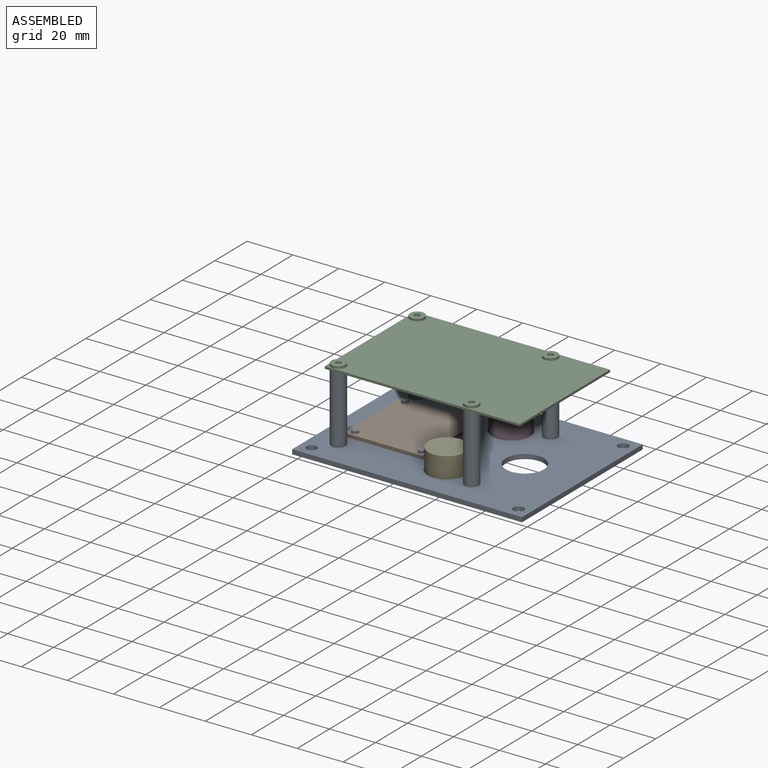
[diagram: assembled view]
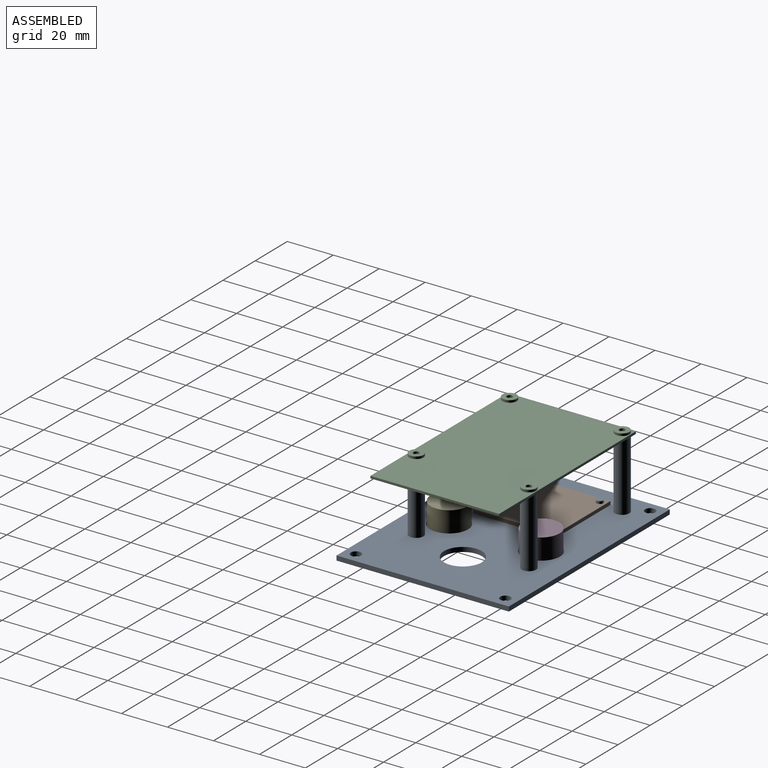
[diagram: assembled view, second angle]
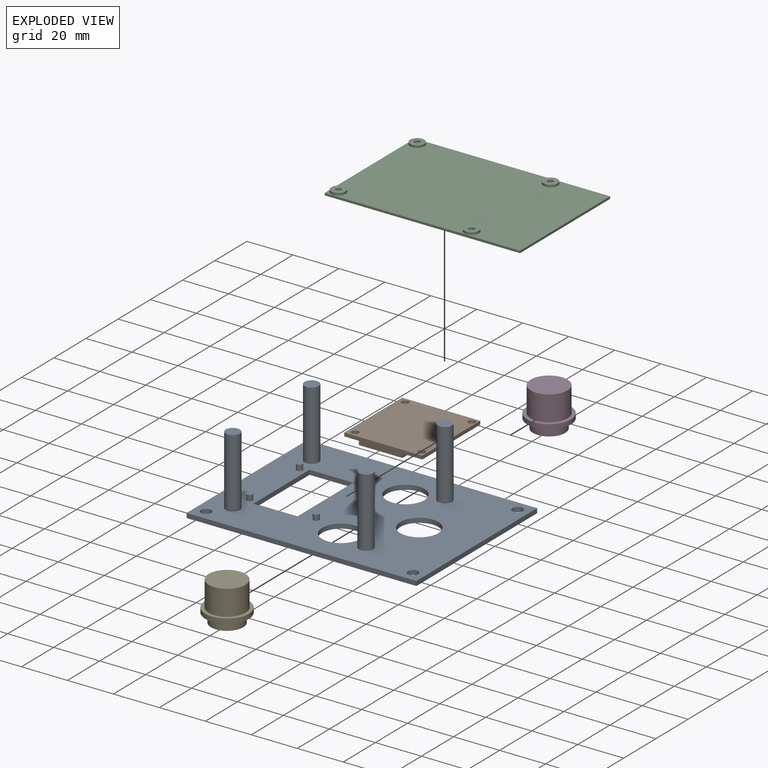
[diagram: exploded view]
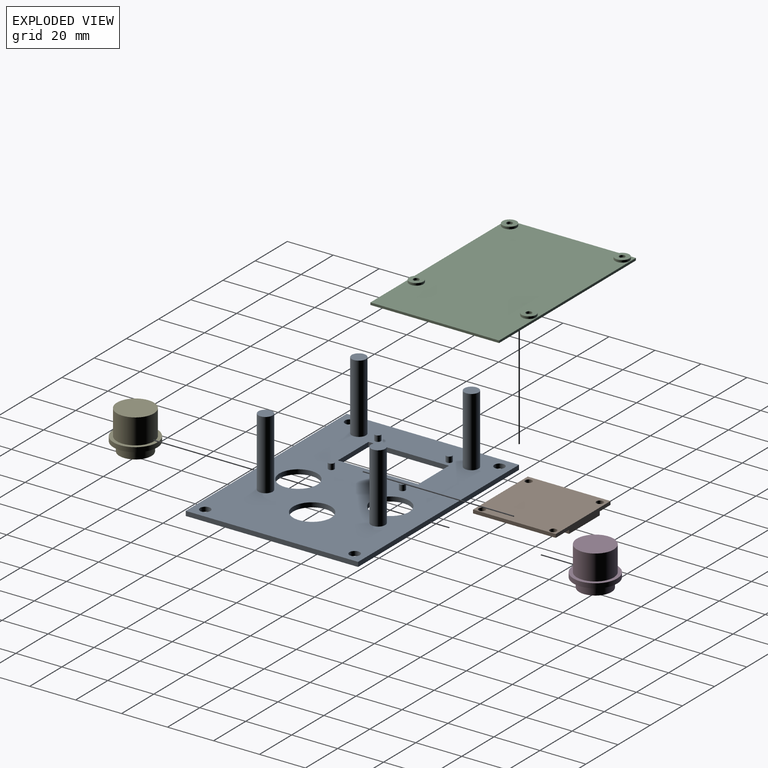
[diagram: exploded view, second angle]
FCSTD DOCUMENT  (FreeCAD 0.19R20943 (Git))
Label: Board
License: All rights reserved
LicenseURL: http://en.wikipedia.org/wiki/All_rights_reserved
objects: Sketcher::SketchObject×10, PartDesign::Pad×10, PartDesign::Body×4, PartDesign::ShapeBinder×2, App::Link×2
note: 36 computed .brp shape members not serialized (recipe doc carries the construction recipe); baked Part::Feature solids carry a one-line shape summary decoded from their .brp

FEATURE [Sketcher::SketchObject] Sketch002  label="LCD-Board"
  MapMode = 5
  Support = -> [XY_Plane001]
  sketch-geometry (8):
    g0: LineSegment StartX=-18 StartY=17 StartZ=0 EndX=18 EndY=17 EndZ=0
    g1: LineSegment StartX=18 StartY=17 StartZ=0 EndX=18 EndY=-17 EndZ=0
    g2: LineSegment StartX=18 StartY=-17 StartZ=0 EndX=-18 EndY=-17 EndZ=0
    g3: LineSegment StartX=-18 StartY=-17 StartZ=0 EndX=-18 EndY=17 EndZ=0
    g4: Circle CenterX=-15.5 CenterY=14 CenterZ=0 NormalX=0 NormalY=0 NormalZ=1 AngleXU=0 Radius=1.5
    g5: Circle CenterX=15.5 CenterY=14 CenterZ=0 NormalX=0 NormalY=0 NormalZ=1 AngleXU=0 Radius=1.5
    g6: Circle CenterX=-15.5 CenterY=-15 CenterZ=0 NormalX=0 NormalY=0 NormalZ=1 AngleXU=0 Radius=1.5
    g7: Circle CenterX=15.5 CenterY=-15 CenterZ=0 NormalX=0 NormalY=0 NormalZ=1 AngleXU=0 Radius=1.5
  constraints (21):
    c: Coincident(g0,g1)
    c: Coincident(g1,g2)
    c: Coincident(g2,g3)
    c: Coincident(g3,g0)
    c: Horizontal(g2)
    c: Vertical(g1)
    c: Symmetric(g0,g0,g-2)
    c: Symmetric(g0,g2,g-1)
    c: DistanceX(g0,g0) = 36
    c: DistanceY(g3,g3) = 34
    c: DistanceX(g0,g4) = 2.5
    c: DistanceY(g4,g0) = 3
    c: Radius(g4) = 1.5
    c: Radius(g5) = 1.5
    c: Symmetric(g4,g5,g-2)
    c: Radius(g6) = 1.5
    c: DistanceY(g6,g4) = 29
    c: Vertical(g6,g4)
    c: Radius(g7) = 1.5
    c: Vertical(g7,g5)
    c: Horizontal(g6,g7)
FEATURE [PartDesign::Pad] Pad  label="LCD-Board-body"
  Length = 1.5
  Length2 = 100
  Profile = -> Sketch002
  Type = 0
FEATURE [Sketcher::SketchObject] Sketch003  label="PI-Board"
  MapMode = 5
  sketch-geometry (4):
    g0: LineSegment StartX=-42.5 StartY=28 StartZ=0 EndX=42.5 EndY=28 EndZ=0
    g1: LineSegment StartX=42.5 StartY=28 StartZ=0 EndX=42.5 EndY=-28 EndZ=0
    g2: LineSegment StartX=42.5 StartY=-28 StartZ=0 EndX=-42.5 EndY=-28 EndZ=0
    g3: LineSegment StartX=-42.5 StartY=-28 StartZ=0 EndX=-42.5 EndY=28 EndZ=0
  constraints (11):
    c: Coincident(g0,g1)
    c: Coincident(g1,g2)
    c: Coincident(g2,g3)
    c: Coincident(g3,g0)
    c: Horizontal(g0)
    c: Horizontal(g2)
    c: Vertical(g1)
    c: Vertical(g3)
    c: Symmetric(g2,g0,g-1)
    c: DistanceX(g0,g0) = 85
    c: DistanceY(g3,g3) = 56
FEATURE [Sketcher::SketchObject] Sketch004  label="PI-Holes"
  MapMode = 5
  sketch-geometry (8):
    g0: Circle CenterX=-39 CenterY=24.5 CenterZ=0 NormalX=0 NormalY=0 NormalZ=1 AngleXU=0 Radius=1.25
    g1: Circle CenterX=19 CenterY=24.5 CenterZ=0 NormalX=0 NormalY=0 NormalZ=1 AngleXU=0 Radius=1.25
    g2: Circle CenterX=-39 CenterY=-24.5 CenterZ=0 NormalX=0 NormalY=0 NormalZ=1 AngleXU=0 Radius=1.25
    g3: Circle CenterX=19 CenterY=-24.5 CenterZ=0 NormalX=0 NormalY=0 NormalZ=1 AngleXU=0 Radius=1.25
    g4: Circle CenterX=-39 CenterY=24.5 CenterZ=0 NormalX=0 NormalY=0 NormalZ=1 AngleXU=0 Radius=3.1
    g5: Circle CenterX=19 CenterY=24.5 CenterZ=0 NormalX=0 NormalY=0 NormalZ=1 AngleXU=0 Radius=3.1
    g6: Circle CenterX=-39 CenterY=-24.5 CenterZ=0 NormalX=0 NormalY=0 NormalZ=1 AngleXU=0 Radius=3.1
    g7: Circle CenterX=19 CenterY=-24.5 CenterZ=0 NormalX=0 NormalY=0 NormalZ=1 AngleXU=0 Radius=3.1
  constraints (20):
    c: Radius(g0) = 1.25
    c: Radius(g1) = 1.25
    c: DistanceX(g0,g1) = 58
    c: Horizontal(g0,g1)
    c: Radius(g2) = 1.25
    c: Radius(g3) = 1.25
    c: Vertical(g2,g0)
    c: Vertical(g1,g3)
    c: Horizontal(g2,g3)
    c: DistanceY(g2,g0) = 49
    c: Coincident(g4,g0)
    c: Radius(g4) = 3.1
    c: Coincident(g5,g1)
    c: Radius(g5) = 3.1
    c: Coincident(g6,g2)
    c: Radius(g6) = 3.1
    c: Coincident(g7,g3)
    c: Radius(g7) = 3.1
    c: DistanceX(g0,g-1) = 39
    c: DistanceY(g-1,g0) = 24.5
FEATURE [PartDesign::Pad] Pad002  label="PI-Board-body"
  Length = 1
  Length2 = 100
  Profile = -> Sketch003
  Type = 0
FEATURE [PartDesign::Pad] Pad003  label="PI-Holes-body"
  BaseFeature = -> Pad002
  Length = 2
  Length2 = 100
  Profile = -> Sketch004
  Type = 0
FEATURE [PartDesign::Body] Body002  label="PI234"
  Group = -> [Sketch003,Pad002,Sketch004,Pad003]
  Origin = -> Origin002
  Placement = pos=(0,0,30) rot=(0,0,1;0rad)
  Tip = -> Pad003
FEATURE [PartDesign::ShapeBinder] ShapeBinder001  label="PI-footprint"
  Support = -> [Pad003]
  TraceSupport = false
FEATURE [Sketcher::SketchObject] Sketch007  label="LCD-Screen"
  ExternalGeometry = -> [Sketch002]
  MapMode = 5
  Placement = pos=(0,0,0) rot=(1,0,0;3.14159rad)
  Support = -> [Pad]
  sketch-geometry (4):
    g0: LineSegment StartX=-17.5 StartY=8 StartZ=0 EndX=17.5 EndY=8 EndZ=0
    g1: LineSegment StartX=17.5 StartY=8 StartZ=0 EndX=17.5 EndY=-11 EndZ=0
    g2: LineSegment StartX=17.5 StartY=-11 StartZ=0 EndX=-17.5 EndY=-11 EndZ=0
    g3: LineSegment StartX=-17.5 StartY=-11 StartZ=0 EndX=-17.5 EndY=8 EndZ=0
  constraints (11):
    c: Coincident(g0,g1)
    c: Coincident(g1,g2)
    c: Coincident(g2,g3)
    c: Coincident(g3,g0)
    c: Horizontal(g2)
    c: Vertical(g1)
    c: Vertical(g3)
    c: Symmetric(g0,g0,g-2)
    c: DistanceX(g0,g0) = 35
    c: DistanceY(g1,g1) = 19
    c: DistanceY(g-3,g1) = 6
FEATURE [PartDesign::Pad] Pad005  label="LCD-Screen-body"
  BaseFeature = -> Pad
  Length = 2
  Length2 = 100
  Profile = -> Sketch007
  Type = 0
FEATURE [PartDesign::Body] Body001  label="LCD-board"
  Group = -> [Sketch002,Pad,Sketch007,Pad005]
  Origin = -> Origin001
  Placement = pos=(-24,0,0) rot=(0,0,1;1.5708rad)
  Tip = -> Pad005
FEATURE [PartDesign::ShapeBinder] ShapeBinder  label="LCD-footprint"
  Placement = pos=(-24,0,2) rot=(0,0,1;1.5708rad)
  Support = -> [Pad005]
  TraceSupport = true
FEATURE [Sketcher::SketchObject] Sketch
  ExternalGeometry = -> [ShapeBinder]
  MapMode = 5
  Support = -> [XY_Plane]
  sketch-geometry (15):
    g0: LineSegment StartX=-50 StartY=37.5 StartZ=0 EndX=50 EndY=37.5 EndZ=0
    g1: LineSegment StartX=50 StartY=37.5 StartZ=0 EndX=50 EndY=-37.5 EndZ=0
    g2: LineSegment StartX=50 StartY=-37.5 StartZ=0 EndX=-50 EndY=-37.5 EndZ=0
    g3: LineSegment StartX=-50 StartY=-37.5 StartZ=0 EndX=-50 EndY=37.5 EndZ=0
    g4: LineSegment StartX=-35 StartY=17.5 StartZ=0 EndX=-16 EndY=17.5 EndZ=0
    g5: LineSegment StartX=-16 StartY=17.5 StartZ=0 EndX=-16 EndY=-17.5 EndZ=0
    g6: LineSegment StartX=-16 StartY=-17.5 StartZ=0 EndX=-35 EndY=-17.5 EndZ=0
    g7: LineSegment StartX=-35 StartY=-17.5 StartZ=0 EndX=-35 EndY=17.5 EndZ=0
    g8: Circle CenterX=5 CenterY=20 CenterZ=0 NormalX=0 NormalY=0 NormalZ=1 AngleXU=0 Radius=8.25
    g9: Circle CenterX=5 CenterY=-20 CenterZ=0 NormalX=0 NormalY=0 NormalZ=1 AngleXU=0 Radius=8.25
    g10: Circle CenterX=-45 CenterY=32.5 CenterZ=0 NormalX=0 NormalY=0 NormalZ=1 AngleXU=0 Radius=2.25
    g11: Circle CenterX=-45 CenterY=-32.5 CenterZ=0 NormalX=0 NormalY=0 NormalZ=1 AngleXU=0 Radius=2.25
    g12: Circle CenterX=45 CenterY=32.5 CenterZ=0 NormalX=0 NormalY=0 NormalZ=1 AngleXU=0 Radius=2.25
    g13: Circle CenterX=45 CenterY=-32.5 CenterZ=0 NormalX=0 NormalY=0 NormalZ=1 AngleXU=0 Radius=2.25
    g14: Circle CenterX=25 CenterY=0 CenterZ=0 NormalX=0 NormalY=0 NormalZ=1 AngleXU=0 Radius=8.25
  constraints (37):
    c: Coincident(g0,g1)
    c: Coincident(g1,g2)
    c: Coincident(g2,g3)
    c: Coincident(g3,g0)
    c: Horizontal(g2)
    c: Vertical(g1)
    c: Symmetric(g0,g0,g-2)
    c: Symmetric(g0,g2,g-1)
    c: DistanceX(g0,g0) = 100
    c: DistanceY(g3,g3) = 75
    c: Coincident(g4,g5)
    c: Coincident(g5,g6)
    c: Coincident(g6,g7)
    c: Coincident(g7,g4)
    c: Horizontal(g4)
    c: Horizontal(g6)
    c: Vertical(g5)
    c: Vertical(g7)
    c: Coincident(g5,g-4)
    c: Coincident(g-3,g4)
    c: Radius(g8) = 8.25
    c: DistanceY(g8,g0) = 17.5
    c: Radius(g9) = 8.25
    c: Symmetric(g8,g9,g-1)
    c: DistanceX(g8,g0) = 45
    c: Radius(g10) = 2.25
    c: DistanceX(g0,g10) = 5
    c: DistanceY(g10,g0) = 5
    c: Radius(g11) = 2.25
    c: Symmetric(g10,g11,g-1)
    c: Radius(g12) = 2.25
    c: Symmetric(g10,g12,g-2)
    c: Radius(g13) = 2.25
    c: Symmetric(g12,g13,g-1)
    c: Radius(g14) = 8.25
    c: PointOnObject(g14,g-1)
    c: DistanceX(g14,g0) = 25
FEATURE [PartDesign::Pad] Pad001  label="Base"
  Length = 2
  Length2 = 100
  Profile = -> Sketch
  Type = 0
FEATURE [Sketcher::SketchObject] Sketch008  label="LCD-support"
  ExternalGeometry = -> [ShapeBinder]
  MapMode = 5
  Placement = pos=(0,0,2) rot=(0,0,1;0rad)
  Support = -> [Pad001]
  sketch-geometry (4):
    g0: Circle CenterX=-38 CenterY=15.5 CenterZ=0 NormalX=0 NormalY=0 NormalZ=1 AngleXU=0 Radius=1.3
    g1: Circle CenterX=-9 CenterY=15.5 CenterZ=0 NormalX=0 NormalY=0 NormalZ=1 AngleXU=0 Radius=1.3
    g2: Circle CenterX=-38 CenterY=-15.5 CenterZ=0 NormalX=0 NormalY=0 NormalZ=1 AngleXU=0 Radius=1.3
    g3: Circle CenterX=-9 CenterY=-15.5 CenterZ=0 NormalX=0 NormalY=0 NormalZ=1 AngleXU=0 Radius=1.3
  constraints (8):
    c: Coincident(g0,g-3)
    c: Coincident(g1,g-4)
    c: Coincident(g2,g-6)
    c: Coincident(g3,g-5)
    c: Radius(g0) = 1.3
    c: Radius(g1) = 1.3
    c: Radius(g2) = 1.3
    c: Radius(g3) = 1.3
FEATURE [PartDesign::Pad] Pad006  label="LCD-Support"
  BaseFeature = -> Pad001
  Length = 2.5
  Length2 = 100
  Profile = -> Sketch008
  Type = 0
FEATURE [Sketcher::SketchObject] Sketch009  label="PI-support"
  ExternalGeometry = -> [ShapeBinder001]
  MapMode = 5
  Placement = pos=(0,0,2) rot=(0,0,1;0rad)
  Support = -> [Pad006]
  sketch-geometry (4):
    g0: Circle CenterX=19 CenterY=24.5 CenterZ=0 NormalX=0 NormalY=0 NormalZ=1 AngleXU=0 Radius=3.1
    g1: Circle CenterX=-39 CenterY=24.5 CenterZ=0 NormalX=0 NormalY=0 NormalZ=1 AngleXU=0 Radius=3.1
    g2: Circle CenterX=-39 CenterY=-24.5 CenterZ=0 NormalX=0 NormalY=0 NormalZ=1 AngleXU=0 Radius=3.1
    g3: Circle CenterX=19 CenterY=-24.5 CenterZ=0 NormalX=0 NormalY=0 NormalZ=1 AngleXU=0 Radius=3.1
  constraints (8):
    c: Coincident(g0,g-6)
    c: Coincident(g1,g-3)
    c: Coincident(g2,g-4)
    c: Coincident(g3,g-5)
    c: Radius(g1) = 3.1
    c: Radius(g0) = 3.1
    c: Radius(g2) = 3.1
    c: Radius(g3) = 3.1
FEATURE [PartDesign::Pad] Pad007  label="PI-Support"
  BaseFeature = -> Pad006
  Length = 30
  Length2 = 100
  Profile = -> Sketch009
  Type = 0
FEATURE [PartDesign::Body] Body
  Group = -> [Sketch,Pad001,ShapeBinder001,ShapeBinder,Sketch008,Sketch009,Pad006,Pad007]
  Origin = -> Origin
  Placement = pos=(0,0,-2) rot=(0,0,1;0rad)
  Tip = -> Pad007
FEATURE [Sketcher::SketchObject] Sketch010
  MapMode = 5
  Support = -> [XY_Plane003]
  sketch-geometry (1):
    g0: Circle CenterX=0 CenterY=0 CenterZ=0 NormalX=0 NormalY=0 NormalZ=1 AngleXU=0 Radius=9.5
  constraints (2):
    c: Coincident(g0,g-1)
    c: Radius(g0) = 9.5
FEATURE [PartDesign::Pad] Pad008
  Length = 2
  Length2 = 100
  Profile = -> Sketch010
  Type = 0
FEATURE [Sketcher::SketchObject] Sketch011
  MapMode = 5
  Placement = pos=(0,0,2) rot=(0,0,1;0rad)
  Support = -> [Pad008]
  sketch-geometry (1):
    g0: Circle CenterX=0 CenterY=0 CenterZ=0 NormalX=0 NormalY=0 NormalZ=1 AngleXU=0 Radius=7
  constraints (2):
    c: Coincident(g0,g-1)
    c: Radius(g0) = 7
FEATURE [PartDesign::Pad] Pad009
  BaseFeature = -> Pad008
  Length = 4
  Length2 = 100
  Profile = -> Sketch011
  Type = 0
FEATURE [Sketcher::SketchObject] Sketch012
  MapMode = 5
  Placement = pos=(0,0,0) rot=(1,0,0;3.14159rad)
  Support = -> [Pad009]
  sketch-geometry (1):
    g0: Circle CenterX=0 CenterY=0 CenterZ=0 NormalX=0 NormalY=0 NormalZ=1 AngleXU=0 Radius=8
  constraints (2):
    c: Coincident(g0,g-1)
    c: Radius(g0) = 8
FEATURE [PartDesign::Pad] Pad010
  BaseFeature = -> Pad009
  Length = 11
  Length2 = 100
  Profile = -> Sketch012
  Type = 0
FEATURE [PartDesign::Body] Body003  label="Button"
  Group = -> [Sketch010,Pad008,Sketch011,Pad009,Sketch012,Pad010]
  Origin = -> Origin003
  Placement = pos=(25,0,-2) rot=(0,1,0;3.14159rad)
  Tip = -> Pad010
FEATURE [App::Link] Link  label="Button001"
  LinkPlacement = pos=(5,20,-2) rot=(0,1,0;3.14159rad)
  LinkedObject = -> Body003
  Placement = pos=(5,20,-2) rot=(0,1,0;3.14159rad)
FEATURE [App::Link] Link001  label="Button002"
  LinkPlacement = pos=(5,-20,-2) rot=(0,1,0;3.14159rad)
  LinkedObject = -> Body003
  Placement = pos=(5,-20,-2) rot=(0,1,0;3.14159rad)
